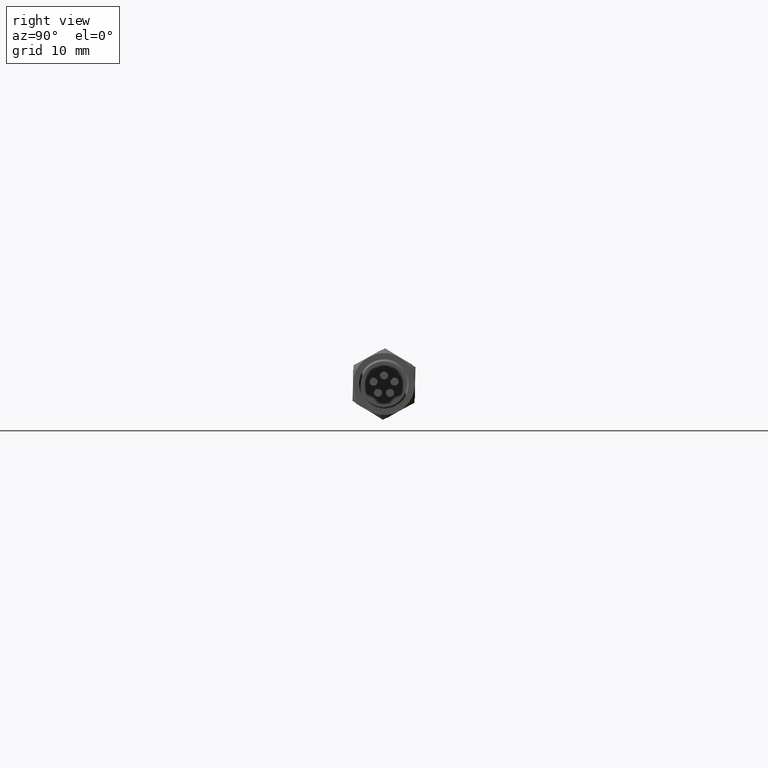
[diagram: clean part render]
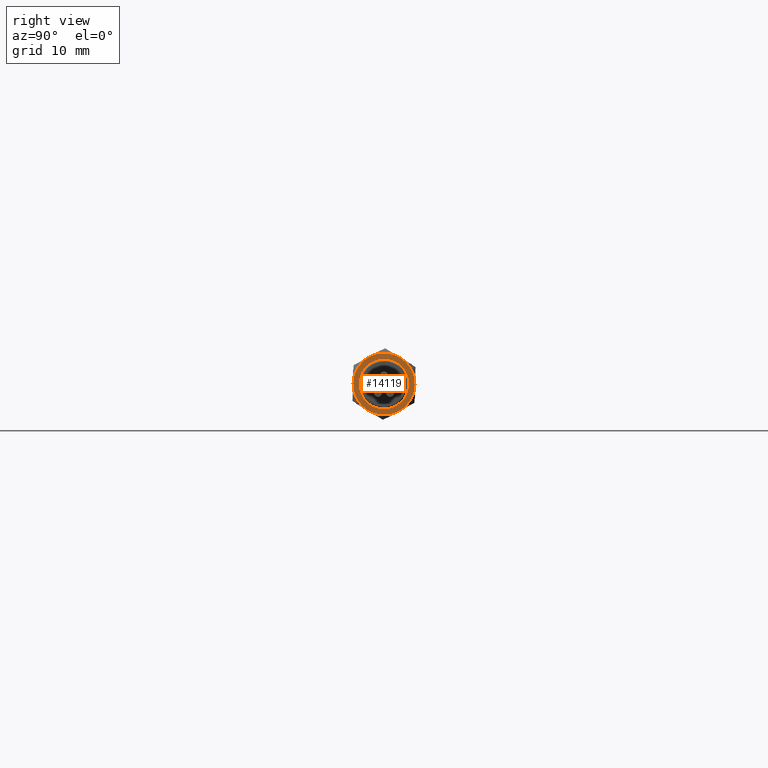
[diagram: same view with one face highlighted and labeled with its STEP entity id]
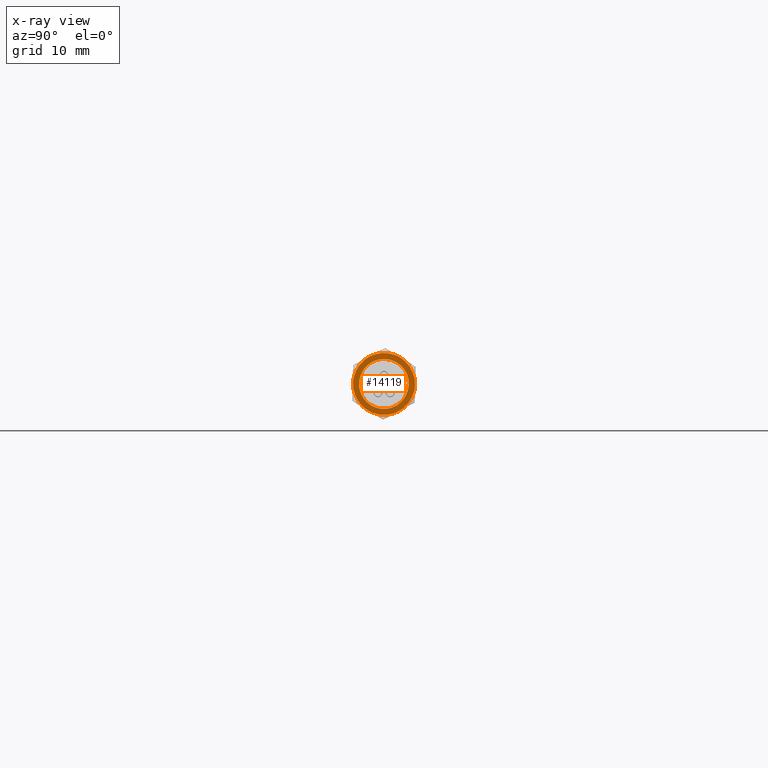
[diagram: x-ray of the same camera — body ghosted, the highlighted face saturated]
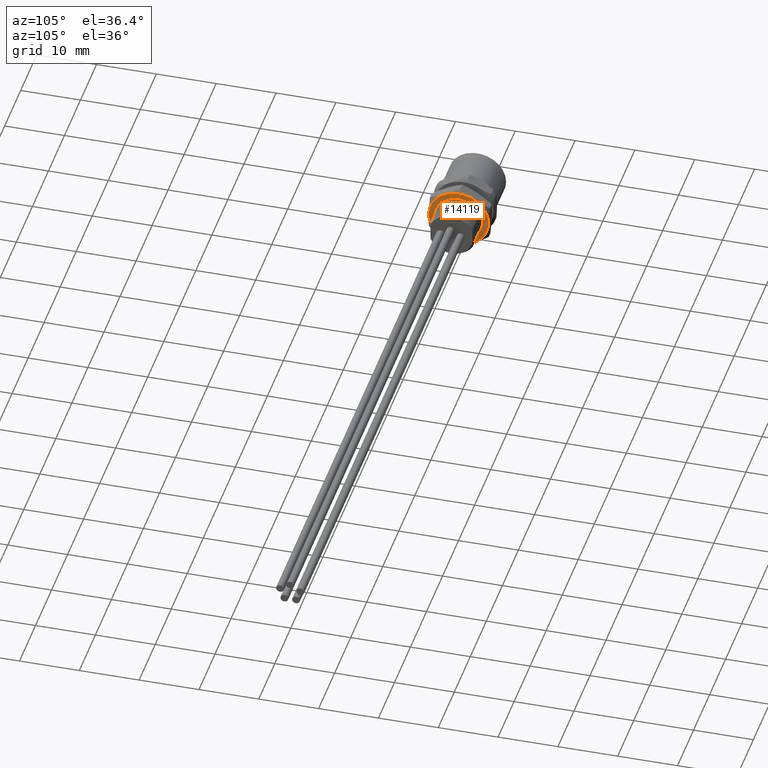
[diagram: same view with one face highlighted and labeled with its STEP entity id]
A machine part, right view. The second image highlights one B-rep face of the part: STEP entity #14119.
The next image is the same camera in x-ray: the body ghosted, the highlighted face saturated — about 0% of this face is hidden behind the body in this view.
A second angle (auxiliary view) of the same face is appended — the face is thin or edge-on in the first view.
In plain terms, the highlighted planar face has unit normal (1, 0, 0).
Its self-contained STEP definition (entity closure, byte-faithful):
#3400=CARTESIAN_POINT('',(2.086614173228E-1,0.E0,0.E0));
#3401=DIRECTION('',(1.E0,0.E0,0.E0));
#3402=DIRECTION('',(0.E0,9.995147344416E-1,-3.114956876286E-2));
#3403=AXIS2_PLACEMENT_3D('',#3400,#3401,#3402);
#3405=CARTESIAN_POINT('',(2.086614173228E-1,0.E0,0.E0));
#3406=DIRECTION('',(1.E0,0.E0,0.E0));
#3407=DIRECTION('',(0.E0,4.727810493552E-1,-8.811799358647E-1));
#3408=AXIS2_PLACEMENT_3D('',#3405,#3406,#3407);
#3410=CARTESIAN_POINT('',(2.086614173228E-1,0.E0,0.E0));
#3411=DIRECTION('',(1.E0,0.E0,0.E0));
#3412=DIRECTION('',(0.E0,-9.995147344416E-1,3.114956876286E-2));
#3413=AXIS2_PLACEMENT_3D('',#3410,#3411,#3412);
#3415=CARTESIAN_POINT('',(2.086614173228E-1,0.E0,0.E0));
#3416=DIRECTION('',(1.E0,0.E0,0.E0));
#3417=DIRECTION('',(0.E0,-4.727810493552E-1,8.811799358647E-1));
#3418=AXIS2_PLACEMENT_3D('',#3415,#3416,#3417);
#3420=CARTESIAN_POINT('',(2.086614173228E-1,1.574736771127E-1,
-1.445093035919E-3));
#3421=CARTESIAN_POINT('',(2.086614173228E-1,1.574288675746E-1,
-6.328339630603E-3));
#3422=CARTESIAN_POINT('',(2.086614173228E-1,1.568917482252E-1,
-1.621813255520E-2));
#3423=CARTESIAN_POINT('',(2.086614173228E-1,1.545250814067E-1,
-3.171032013680E-2));
#3424=CARTESIAN_POINT('',(2.086614173228E-1,1.505791236087E-1,
-4.699231757868E-2));
#3425=CARTESIAN_POINT('',(2.086614173228E-1,1.451717038901E-1,
-6.169870489307E-2));
#3426=CARTESIAN_POINT('',(2.086614173228E-1,1.383365101683E-1,
-7.579814665970E-2));
#3427=CARTESIAN_POINT('',(2.086614173228E-1,1.300725685302E-1,
-8.924502605438E-2));
#3428=CARTESIAN_POINT('',(2.086614173228E-1,1.205611117915E-1,
-1.017008642477E-1));
#3429=CARTESIAN_POINT('',(2.086614173228E-1,1.138139060764E-1,
-1.089508443889E-1));
#3430=CARTESIAN_POINT('',(2.086614173228E-1,1.103294999755E-1,
-1.123719213629E-1));
#3432=CARTESIAN_POINT('',(2.086614173228E-1,4.941621548423E-3,
1.585647489147E-1));
#3433=CARTESIAN_POINT('',(2.086614173228E-1,1.031583450358E-2,
1.583972632483E-1));
#3434=CARTESIAN_POINT('',(2.086614173228E-1,2.098282015380E-2,
1.575210745883E-1));
#3435=CARTESIAN_POINT('',(2.086614173228E-1,3.681229101711E-2,
1.545908987050E-1));
#3436=CARTESIAN_POINT('',(2.086614173228E-1,5.225256299867E-2,
1.500773905191E-1));
#3437=CARTESIAN_POINT('',(2.086614173228E-1,6.717504594070E-2,
1.440164882736E-1));
#3438=CARTESIAN_POINT('',(2.086614173228E-1,8.136939828297E-2,
1.365014637058E-1));
#3439=CARTESIAN_POINT('',(2.086614173228E-1,9.481614788377E-2,
1.275309296208E-1));
#3440=CARTESIAN_POINT('',(2.086614173228E-1,1.070261966749E-1,
1.174304994592E-1));
#3441=CARTESIAN_POINT('',(2.086614173228E-1,1.171750658751E-1,
1.072300618227E-1));
#3442=CARTESIAN_POINT('',(2.086614173228E-1,1.253612635095E-1,
9.746225070092E-2));
#3443=CARTESIAN_POINT('',(2.086614173228E-1,1.318636570570E-1,
8.840643689597E-2));
#3444=CARTESIAN_POINT('',(2.086614173228E-1,1.371249285217E-1,
7.996065530227E-2));
#3445=CARTESIAN_POINT('',(2.086614173228E-1,1.414158058614E-1,
7.206142088619E-2));
#3446=CARTESIAN_POINT('',(2.086614173228E-1,1.448565486358E-1,
6.482672401062E-2));
#3447=CARTESIAN_POINT('',(2.086614173228E-1,1.475801948610E-1,
5.832651593222E-2));
#3448=CARTESIAN_POINT('',(2.086614173228E-1,1.497881614885E-1,
5.237435093495E-2));
#3449=CARTESIAN_POINT('',(2.086614173228E-1,1.516383926749E-1,
4.673656549188E-2));
#3450=CARTESIAN_POINT('',(2.086614173228E-1,1.532512931026E-1,
4.114275427904E-2));
#3451=CARTESIAN_POINT('',(2.086614173228E-1,1.546807137642E-1,
3.539475282047E-2));
#3452=CARTESIAN_POINT('',(2.086614173228E-1,1.558875157391E-1,
2.962677965615E-2));
#3453=CARTESIAN_POINT('',(2.086614173228E-1,1.568762010914E-1,
2.384545493682E-2));
#3454=CARTESIAN_POINT('',(2.086614173228E-1,1.576615236537E-1,
1.794885978002E-2));
#3455=CARTESIAN_POINT('',(2.086614173228E-1,1.582402310158E-1,
1.184126742686E-2));
#3456=CARTESIAN_POINT('',(2.086614173228E-1,1.585954964063E-1,
5.428324810948E-3));
#3457=CARTESIAN_POINT('',(2.086614173228E-1,1.586549600627E-1,
8.804784822372E-4));
#3458=CARTESIAN_POINT('',(2.086614173228E-1,1.586335002822E-1,
-1.455758237302E-3));
#3460=CARTESIAN_POINT('',(2.086614173228E-1,0.E0,0.E0));
#3461=DIRECTION('',(1.E0,0.E0,0.E0));
#3462=DIRECTION('',(0.E0,5.267336850864E-1,8.500303671019E-1));
#3463=AXIS2_PLACEMENT_3D('',#3460,#3461,#3462);
#3609=CARTESIAN_POINT('',(2.086614173228E-1,0.E0,0.E0));
#3610=DIRECTION('',(1.E0,0.E0,0.E0));
#3611=DIRECTION('',(0.E0,-5.267336850864E-1,-8.500303671019E-1));
#3612=AXIS2_PLACEMENT_3D('',#3609,#3610,#3611);
#3732=CARTESIAN_POINT('',(2.086614173228E-1,1.111420870319E-1,
-1.131995666095E-1));
#3733=CARTESIAN_POINT('',(2.086614173228E-1,1.076964189382E-1,
-1.165351493204E-1));
#3734=CARTESIAN_POINT('',(2.086614173228E-1,1.008464101990E-1,
-1.227114091102E-1));
#3735=CARTESIAN_POINT('',(2.086614173228E-1,9.104493866197E-2,
-1.301000063802E-1));
#3736=CARTESIAN_POINT('',(2.086614173228E-1,8.066833101506E-2,
-1.367860377934E-1));
#3737=CARTESIAN_POINT('',(2.086614173228E-1,7.007008077011E-2,
-1.424912870492E-1));
#3738=CARTESIAN_POINT('',(2.086614173228E-1,5.798983704407E-2,
-1.479552441087E-1));
#3739=CARTESIAN_POINT('',(2.086614173228E-1,4.111703731042E-2,
-1.535454726378E-1));
#3740=CARTESIAN_POINT('',(2.086614173228E-1,2.017524421488E-2,
-1.582642085204E-1));
#3741=CARTESIAN_POINT('',(2.086614173228E-1,-1.110662926491E-2,
-1.587639114727E-1));
#3742=CARTESIAN_POINT('',(2.086614173228E-1,-1.841992914173E-2,
-1.575709058679E-1));
#3743=CARTESIAN_POINT('',(2.086614173228E-1,-3.202442717918E-2,
-1.556079283960E-1));
#3744=CARTESIAN_POINT('',(2.086614173228E-1,-4.371521472598E-2,
-1.526430852574E-1));
#3745=CARTESIAN_POINT('',(2.086614173228E-1,-5.560170080912E-2,
-1.487596648481E-1));
#3746=CARTESIAN_POINT('',(2.086614173228E-1,-6.703405934533E-2,
-1.439592638616E-1));
#3747=CARTESIAN_POINT('',(2.086614173228E-1,-7.808096548100E-2,
-1.382825955394E-1));
#3748=CARTESIAN_POINT('',(2.086614173228E-1,-8.863957097166E-2,
-1.317624222238E-1));
#3749=CARTESIAN_POINT('',(2.086614173228E-1,-9.866068957408E-2,
-1.244367693783E-1));
#3750=CARTESIAN_POINT('',(2.086614173228E-1,-1.080834348873E-1,
-1.163468565342E-1));
#3751=CARTESIAN_POINT('',(2.086614173228E-1,-1.168433216589E-1,
-1.075460868125E-1));
#3752=CARTESIAN_POINT('',(2.086614173228E-1,-1.248853698629E-1,
-9.809214404010E-2));
#3753=CARTESIAN_POINT('',(2.086614173228E-1,-1.321655013792E-1,
-8.803770600256E-2));
#3754=CARTESIAN_POINT('',(2.086614173228E-1,-1.386403002550E-1,
-7.744321554039E-2));
#3755=CARTESIAN_POINT('',(2.086614173228E-1,-1.442672777397E-1,
-6.637402039017E-2));
#3756=CARTESIAN_POINT('',(2.086614173228E-1,-1.490108434413E-1,
-5.490222781825E-2));
#3757=CARTESIAN_POINT('',(2.086614173228E-1,-1.528437359645E-1,
-4.309436034350E-2));
#3758=CARTESIAN_POINT('',(2.086614173228E-1,-1.557436506980E-1,
-3.102308804856E-2));
#3759=CARTESIAN_POINT('',(2.086614173228E-1,-1.576912434280E-1,
-1.876259231784E-2));
#3760=CARTESIAN_POINT('',(2.086614173228E-1,-1.586751471876E-1,
-6.384393217673E-3));
#3761=CARTESIAN_POINT('',(2.086614173228E-1,-1.586882391964E-1,
6.031439449625E-3));
#3762=CARTESIAN_POINT('',(2.086614173228E-1,-1.577326695252E-1,
1.840816001339E-2));
#3763=CARTESIAN_POINT('',(2.086614173228E-1,-1.558135439898E-1,
3.067033845362E-2));
#3764=CARTESIAN_POINT('',(2.086614173228E-1,-1.529408216585E-1,
4.275197066508E-2));
#3765=CARTESIAN_POINT('',(2.086614173228E-1,-1.491317674670E-1,
5.457189635353E-2));
#3766=CARTESIAN_POINT('',(2.086614173228E-1,-1.444140370433E-1,
6.605297414751E-2));
#3767=CARTESIAN_POINT('',(2.086614173228E-1,-1.388152361884E-1,
7.712852244455E-2));
#3768=CARTESIAN_POINT('',(2.086614173228E-1,-1.323655606501E-1,
8.773828807767E-2));
#3769=CARTESIAN_POINT('',(2.086614173228E-1,-1.251019866415E-1,
9.781588423314E-2));
#3770=CARTESIAN_POINT('',(2.086614173228E-1,-1.170802353985E-1,
1.072874543067E-1));
#3771=CARTESIAN_POINT('',(2.086614173228E-1,-1.083448841265E-1,
1.161026154236E-1));
#3772=CARTESIAN_POINT('',(2.086614173228E-1,-9.894664953172E-2,
1.242102016484E-1));
#3773=CARTESIAN_POINT('',(2.086614173228E-1,-8.893171400817E-2,
1.315663674167E-1));
#3774=CARTESIAN_POINT('',(2.086614173228E-1,-7.838377901250E-2,
1.381099104524E-1));
#3775=CARTESIAN_POINT('',(2.086614173228E-1,-6.735970911758E-2,
1.438091763139E-1));
#3776=CARTESIAN_POINT('',(2.086614173228E-1,-5.592484258662E-2,
1.486302369862E-1));
#3777=CARTESIAN_POINT('',(2.086614173228E-1,-4.413269854992E-2,
1.525481841243E-1));
#3778=CARTESIAN_POINT('',(2.086614173228E-1,-3.208002954812E-2,
1.555289742078E-1));
#3779=CARTESIAN_POINT('',(2.086614173228E-1,-1.983714754409E-2,
1.575591072597E-1));
#3780=CARTESIAN_POINT('',(2.086614173228E-1,-7.475368096562E-3,
1.586272895435E-1));
#3781=CARTESIAN_POINT('',(2.086614173228E-1,7.949810721479E-4,
1.586930423440E-1));
#3782=CARTESIAN_POINT('',(2.086614173228E-1,4.941621548423E-3,
1.585647489147E-1));
#8699=CARTESIAN_POINT('',(2.074999926181E-1,1.574736922286E-1,
-1.443444136927E-3));
#9058=CARTESIAN_POINT('',(2.080807049705E-1,1.103295306446E-1,
-1.123718912489E-1));
#10164=CARTESIAN_POINT('',(2.086614173228E-1,-9.306713569985E-2,
1.734606172962E-1));
#10165=CARTESIAN_POINT('',(2.086614173228E-1,-1.967548689846E-1,
6.131804874579E-3));
#10166=VERTEX_POINT('',#10164);
#10167=VERTEX_POINT('',#10165);
#10168=CARTESIAN_POINT('',(2.086614173228E-1,-1.036877332847E-1,
-1.673288124216E-1));
#10169=VERTEX_POINT('',#10168);
#10170=CARTESIAN_POINT('',(2.086614173228E-1,9.306713569985E-2,
-1.734606172962E-1));
#10171=CARTESIAN_POINT('',(2.086614173228E-1,1.967548689846E-1,
-6.131804874579E-3));
#10172=VERTEX_POINT('',#10170);
#10173=VERTEX_POINT('',#10171);
#10174=CARTESIAN_POINT('',(2.086614173228E-1,1.036877332847E-1,
1.673288124216E-1));
#10175=VERTEX_POINT('',#10174);
#10192=VERTEX_POINT('',#9058);
#10193=VERTEX_POINT('',#8699);
#10201=VERTEX_POINT('',#3432);
#14093=CARTESIAN_POINT('',(2.086614173228E-1,0.E0,0.E0));
#14094=DIRECTION('',(1.E0,0.E0,0.E0));
#14095=DIRECTION('',(0.E0,-3.114956876286E-2,-9.995147344416E-1));
#14096=AXIS2_PLACEMENT_3D('',#14093,#14094,#14095);
#14097=PLANE('',#14096);
#14099=ORIENTED_EDGE('',*,*,#14098,.F.);
#14100=ORIENTED_EDGE('',*,*,#14085,.F.);
#14102=ORIENTED_EDGE('',*,*,#14101,.F.);
#14104=ORIENTED_EDGE('',*,*,#14103,.F.);
#14106=ORIENTED_EDGE('',*,*,#14105,.F.);
#14108=ORIENTED_EDGE('',*,*,#14107,.F.);
#14109=EDGE_LOOP('',(#14099,#14100,#14102,#14104,#14106,#14108));
#14110=FACE_OUTER_BOUND('',#14109,.F.);
#14112=ORIENTED_EDGE('',*,*,#14111,.F.);
#14114=ORIENTED_EDGE('',*,*,#14113,.F.);
#14116=ORIENTED_EDGE('',*,*,#14115,.F.);
#14117=EDGE_LOOP('',(#14112,#14114,#14116));
#14118=FACE_BOUND('',#14117,.F.);
#14119=ADVANCED_FACE('',(#14110,#14118),#14097,.T.);
#3404=CIRCLE('',#3403,1.968503937008E-1);
#3409=CIRCLE('',#3408,1.968503937008E-1);
#3414=CIRCLE('',#3413,1.968503937008E-1);
#3419=CIRCLE('',#3418,1.968503937008E-1);
#3431=B_SPLINE_CURVE_WITH_KNOTS('',3,(#3420,#3421,#3422,#3423,#3424,#3425,#3426,
#3427,#3428,#3429,#3430),.UNSPECIFIED.,.F.,.F.,(4,1,1,1,1,1,1,1,4),(0.E0,
1.25E-1,2.5E-1,3.75E-1,5.E-1,6.25E-1,7.5E-1,8.75E-1,1.E0),.UNSPECIFIED.);
#3459=B_SPLINE_CURVE_WITH_KNOTS('',3,(#3432,#3433,#3434,#3435,#3436,#3437,#3438,
#3439,#3440,#3441,#3442,#3443,#3444,#3445,#3446,#3447,#3448,#3449,#3450,#3451,
#3452,#3453,#3454,#3455,#3456,#3457,#3458),.UNSPECIFIED.,.F.,.F.,(4,1,1,1,1,1,1,
1,1,1,1,1,1,1,1,1,1,1,1,1,1,1,1,1,4),(0.E0,4.166666666667E-2,8.333333333333E-2,
1.25E-1,1.666666666667E-1,2.083333333333E-1,2.5E-1,2.916666666667E-1,
3.333333333333E-1,3.75E-1,4.166666666667E-1,4.583333333333E-1,5.E-1,
5.416666666667E-1,5.833333333333E-1,6.25E-1,6.666666666667E-1,7.083333333333E-1,
7.5E-1,7.916666666667E-1,8.333333333333E-1,8.75E-1,9.166666666667E-1,
9.583333333333E-1,1.E0),.UNSPECIFIED.);
#3464=CIRCLE('',#3463,1.968503937008E-1);
#3613=CIRCLE('',#3612,1.968503937008E-1);
#3783=B_SPLINE_CURVE_WITH_KNOTS('',3,(#3732,#3733,#3734,#3735,#3736,#3737,#3738,
#3739,#3740,#3741,#3742,#3743,#3744,#3745,#3746,#3747,#3748,#3749,#3750,#3751,
#3752,#3753,#3754,#3755,#3756,#3757,#3758,#3759,#3760,#3761,#3762,#3763,#3764,
#3765,#3766,#3767,#3768,#3769,#3770,#3771,#3772,#3773,#3774,#3775,#3776,#3777,
#3778,#3779,#3780,#3781,#3782),.UNSPECIFIED.,.F.,.F.,(4,1,1,1,1,1,1,1,1,1,1,1,1,
1,1,1,1,1,1,1,1,1,1,1,1,1,1,1,1,1,1,1,1,1,1,1,1,1,1,1,1,1,1,1,1,1,1,1,4),(0.E0,
2.083333333333E-2,4.166666666667E-2,6.25E-2,8.333333333333E-2,1.041666666667E-1,
1.25E-1,1.458333333333E-1,1.666666666667E-1,1.875E-1,2.083333333333E-1,
2.291666666667E-1,2.5E-1,2.708333333333E-1,2.916666666667E-1,3.125E-1,
3.333333333333E-1,3.541666666667E-1,3.75E-1,3.958333333333E-1,4.166666666667E-1,
4.375E-1,4.583333333333E-1,4.791666666667E-1,5.E-1,5.208333333333E-1,
5.416666666667E-1,5.625E-1,5.833333333333E-1,6.041666666667E-1,6.25E-1,
6.458333333333E-1,6.666666666667E-1,6.875E-1,7.083333333333E-1,
7.291666666667E-1,7.5E-1,7.708333333333E-1,7.916666666667E-1,8.125E-1,
8.333333333333E-1,8.541666666667E-1,8.75E-1,8.958333333333E-1,9.166666666667E-1,
9.375E-1,9.583333333333E-1,9.791666666667E-1,1.E0),.UNSPECIFIED.);
#14085=EDGE_CURVE('',#10173,#10175,#3404,.T.);
#14098=EDGE_CURVE('',#10175,#10166,#3464,.T.);
#14101=EDGE_CURVE('',#10172,#10173,#3409,.T.);
#14103=EDGE_CURVE('',#10169,#10172,#3613,.T.);
#14105=EDGE_CURVE('',#10167,#10169,#3414,.T.);
#14107=EDGE_CURVE('',#10166,#10167,#3419,.T.);
#14111=EDGE_CURVE('',#10192,#10201,#3783,.T.);
#14113=EDGE_CURVE('',#10193,#10192,#3431,.T.);
#14115=EDGE_CURVE('',#10201,#10193,#3459,.T.);